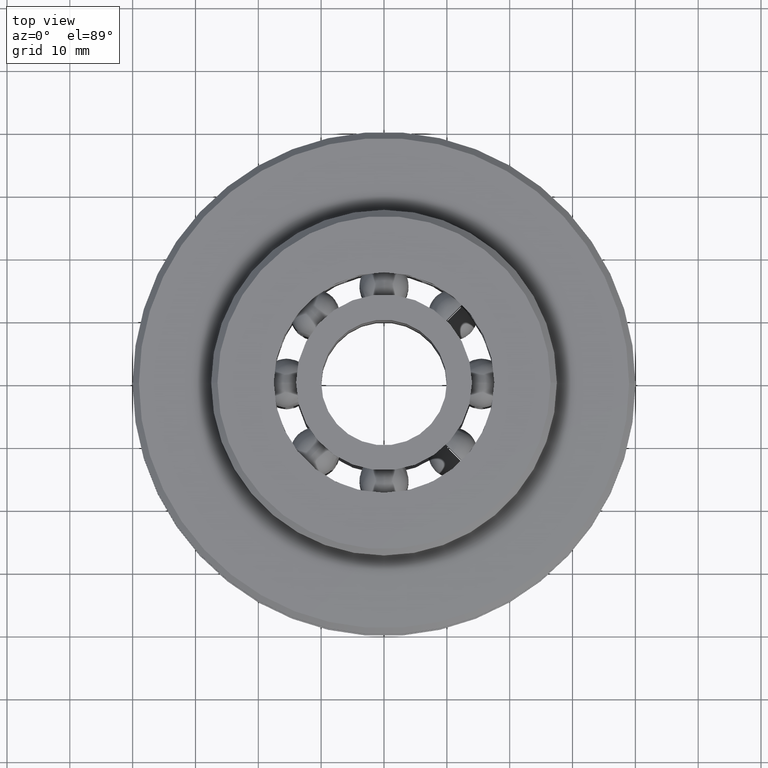
[diagram: clean part render]
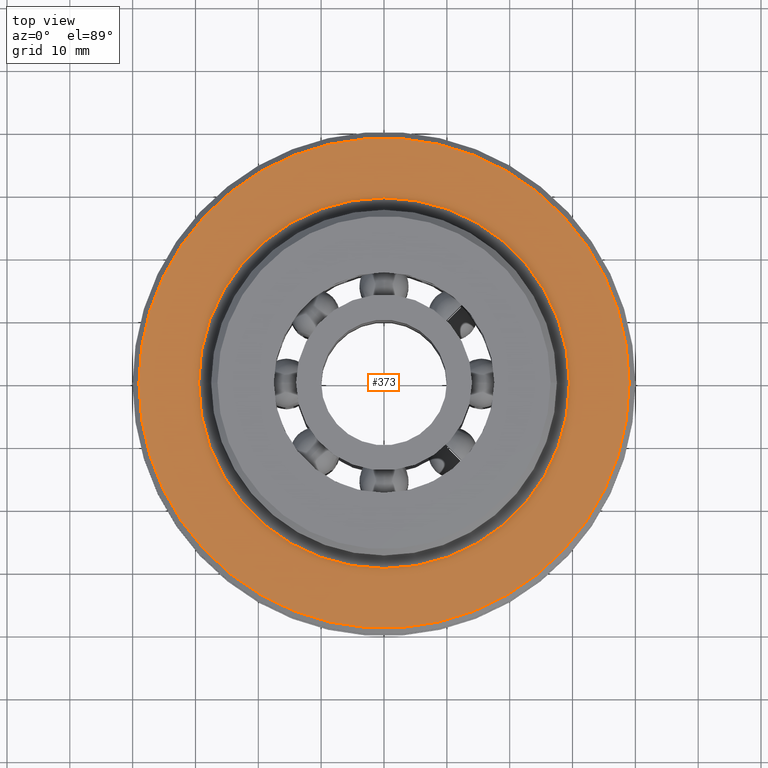
[diagram: same view with one face highlighted and labeled with its STEP entity id]
A machine part, top view. The second image highlights one B-rep face of the part: STEP entity #373.
In plain terms, the highlighted planar face has unit normal (0, 0, 1).
Its self-contained STEP definition (entity closure, byte-faithful):
#373=ADVANCED_FACE('',(#774,#775),#776,.T.);
#774=FACE_BOUND('',#1184,.T.);
#775=FACE_OUTER_BOUND('',#1185,.T.);
#776=PLANE('',#1186);
#1184=EDGE_LOOP('',(#2443,#2444));
#1185=EDGE_LOOP('',(#2445,#2446));
#1186=AXIS2_PLACEMENT_3D('',#2447,#2448,#2449);
#2443=ORIENTED_EDGE('',*,*,#3078,.F.);
#2444=ORIENTED_EDGE('',*,*,#2697,.F.);
#2445=ORIENTED_EDGE('',*,*,#2704,.T.);
#2446=ORIENTED_EDGE('',*,*,#3076,.T.);
#2447=CARTESIAN_POINT('',(34.25,0.0,8.0));
#2448=DIRECTION('',(0.0,0.0,1.0));
#2449=DIRECTION('',(1.0,0.0,0.0));
#2697=EDGE_CURVE('',#3327,#3329,#3330,.T.);
#2704=EDGE_CURVE('',#3335,#3339,#3341,.T.);
#3076=EDGE_CURVE('',#3339,#3335,#3893,.T.);
#3078=EDGE_CURVE('',#3329,#3327,#3895,.T.);
#3327=VERTEX_POINT('',#4992);
#3329=VERTEX_POINT('',#4994);
#3330=CIRCLE('',#4995,29.5);
#3335=VERTEX_POINT('',#5000);
#3339=VERTEX_POINT('',#5005);
#3341=CIRCLE('',#5008,39.0);
#3893=CIRCLE('',#8068,39.0);
#3895=CIRCLE('',#8070,29.5);
#4992=CARTESIAN_POINT('',(-29.5,3.61270805748469E-015,8.0));
#4994=CARTESIAN_POINT('',(29.5,0.0,8.0));
#4995=AXIS2_PLACEMENT_3D('',#8281,#8282,#8283);
#5000=CARTESIAN_POINT('',(39.0,0.0,8.0));
#5005=CARTESIAN_POINT('',(-39.0,4.77612251667468E-015,8.0));
#5008=AXIS2_PLACEMENT_3D('',#8295,#8296,#8297);
#8068=AXIS2_PLACEMENT_3D('',#8680,#8681,#8682);
#8070=AXIS2_PLACEMENT_3D('',#8683,#8684,#8685);
#8281=CARTESIAN_POINT('',(0.0,0.0,8.0));
#8282=DIRECTION('',(0.0,0.0,1.0));
#8283=DIRECTION('',(1.0,0.0,0.0));
#8295=CARTESIAN_POINT('',(0.0,0.0,8.0));
#8296=DIRECTION('',(0.0,0.0,1.0));
#8297=DIRECTION('',(1.0,0.0,0.0));
#8680=CARTESIAN_POINT('',(0.0,0.0,8.0));
#8681=DIRECTION('',(0.0,0.0,1.0));
#8682=DIRECTION('',(1.0,0.0,0.0));
#8683=CARTESIAN_POINT('',(0.0,0.0,8.0));
#8684=DIRECTION('',(0.0,0.0,1.0));
#8685=DIRECTION('',(1.0,0.0,0.0));